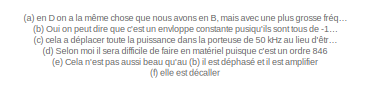
[diagram: root canvas - part 1/2, top left region]
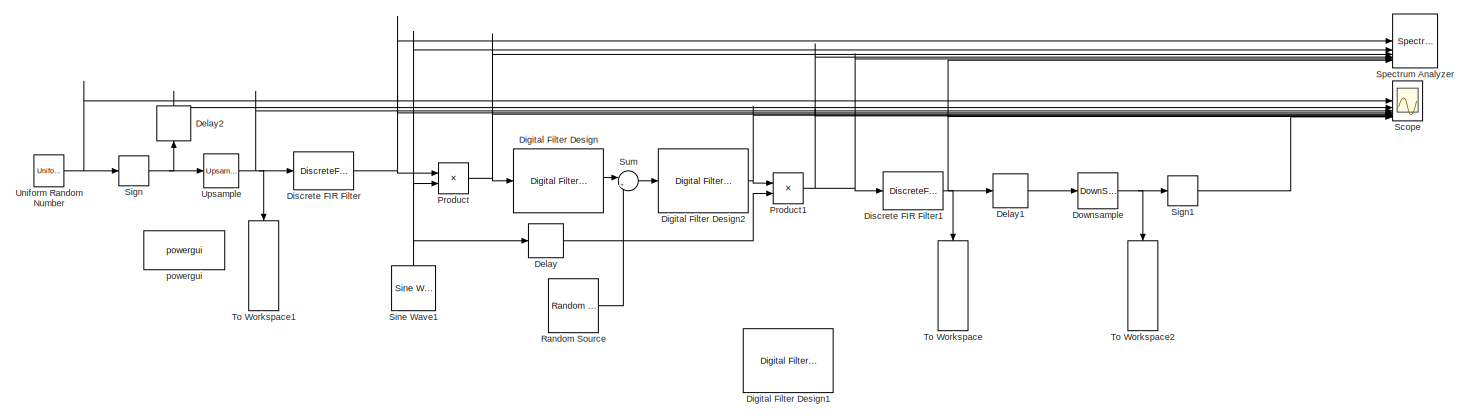
[diagram: root canvas - part 2/2, full width, bottom band]
MODEL slx_2156a71bcfef
KIND model
CONFIG AbsTol = auto
CONFIG EnableMultiTasking = off
CONFIG FixedStep = auto
CONFIG MaxStep = auto
CONFIG MinStep = auto
CONFIG RelTol = 1e-3
CONFIG SampleTimeConstraint = Unconstrained
CONFIG SolverName = VariableStepAuto
CONFIG StartTime = 0.0
CONFIG StopTime = 0.5
BLOCK [Delay] Delay
  DelayLength = 424
  InputPortMap = u0
BLOCK [Delay] Delay1
  DelayLength = 54
  InputPortMap = u0
BLOCK [Delay] Delay2
  DelayLength = 10
  InputPortMap = u0
  NameLocation = right
BLOCK [Reference] Digital Filter Design  REF=dspfdesign/Digital
Filter Design
  SourceBlock = dspfdesign/Digital\nFilter Design
  SourceType = Digital Filter Design
  UserDataPersistent = on
BLOCK [Reference] Digital Filter Design1  REF=dspfdesign/Digital
Filter Design
  Commented = on
  SourceBlock = dspfdesign/Digital\nFilter Design
  SourceType = Digital Filter Design
  UserDataPersistent = on
BLOCK [Reference] Digital Filter Design2  REF=dspfdesign/Digital
Filter Design
  SourceBlock = dspfdesign/Digital\nFilter Design
  SourceType = Digital Filter Design
  UserDataPersistent = on
BLOCK [DiscreteFir] Discrete FIR Filter
  CloseFcn = dspblkCoreblockFVToolHelper(gcbh,'close');
  Coefficients = ones(1,100)
  CopyFcn = dspblkCoreblockFVToolHelper(gcbh,'copy');
  DeleteFcn = dspblkCoreblockFVToolHelper(gcbh,'close');
  InputPortMap = u0
  LoadFcn = dspblkCoreblockFVToolHelper(gcbh,'load');
  ModelCloseFcn = dspblkCoreblockFVToolHelper(gcbh,'close');
  OutputPortMap = o0
  PostSaveFcn = dspblkCoreblockFVToolHelper(gcbh,'postsave');
  PreSaveFcn = dspblkCoreblockFVToolHelper(gcbh,'presave');
BLOCK [DiscreteFir] Discrete FIR Filter1
  CloseFcn = dspblkCoreblockFVToolHelper(gcbh,'close');
  Coefficients = ones(1,100)
  CopyFcn = dspblkCoreblockFVToolHelper(gcbh,'copy');
  DeleteFcn = dspblkCoreblockFVToolHelper(gcbh,'close');
  InputPortMap = u0
  LoadFcn = dspblkCoreblockFVToolHelper(gcbh,'load');
  ModelCloseFcn = dspblkCoreblockFVToolHelper(gcbh,'close');
  OutputPortMap = o0
  PostSaveFcn = dspblkCoreblockFVToolHelper(gcbh,'postsave');
  PreSaveFcn = dspblkCoreblockFVToolHelper(gcbh,'presave');
BLOCK [DownSample] Downsample
  InputProcessing = Elements as channels (sample based)
  N = 100
  RateOptions = Allow multirate processing
BLOCK [Product] Product
BLOCK [Product] Product1
BLOCK [Reference] Random Source  REF=dspsrcs4/Random
Source
  SourceBlock = dspsrcs4/Random\nSource
  SourceType = dsp.simulink.RandomSource
BLOCK [Scope] Scope
  ActiveDisplayYMaximum = 1.6010341967824271
  ActiveDisplayYMinimum = -1.1698560364941972
  Floating = off
  GraphicalSettings = {"Style":{"BackgroundColor":[0.12941176470588237,0.12941176470588237,0.12941176470588237],"AxesColor":[0.07058823529411765,0.07058823529411765,0.07058823529411765],"LabelsColor":[0.8509803921568627,0.8509803921568627,0.8509803921568627],"PreserveColors":false,"Visible":[false,false,false,false,false,false,false,true,false],"LineStyle":["-","-","-","-","-","-","-","-","-"],"LineWidth":[1.5,1.5,1.5,...<+2990ch>
  MultipleDisplayCache = [{"MaxYLimMag":96.900148832477555,"MaxYLimReal":1.6010341967824271,"MinYLimMag":0,"MinYLimReal":-1.1698560364941972,"PlotAsMagnitudePhase":false,"ShowGrid":true,"ShowLegend":true,"Title":"%<SignalLabel>","YLabel":""}]
  NumInputPorts = 9
  ScopeFrameLocation = window
  ShowLegend = on
  Visible = on
  WasSavedAsWebScope = on
  WindowPosition = [1.000000,1.000000,2056.000000,1257.000000,]
BLOCK [Signum] Sign
BLOCK [Signum] Sign1
BLOCK [Reference] Sine Wave1  REF=dspsrcs4/Sine Wave
  NameLocation = right
  SourceBlock = dspsrcs4/Sine Wave
  SourceType = Sine Wave
BLOCK [SpectrumAnalyzer] Spectrum Analyzer
  GraphicalSettings = {"GraphicalSettings":{"Style":{"BackgroundColor":[0.12941176470588237,0.12941176470588237,0.12941176470588237],"AxesColor":[0.070588235294117646,0.070588235294117646,0.070588235294117646],"LabelsColor":[0.85098039215686272,0.85098039215686272,0.85098039215686272],"PreserveColors":false,"Visible":[true,true,true,true,true,true],"LineStyle":["-","-","-","-","-","-"],"LineWidth":[1.5,1.5,1.5,1.5,1.5,...<+541ch>
  MaximizeAxes = Off
  NumInputPorts = 6
  ScopeFrameLocation = window
  ShowLegend = on
  Span = 1000000
  SpectrumType = Power density
  SpectrumUnits = dBm/Hz
  StartFrequency = -500000
  StopFrequency = 500000
  Visible = on
  WasSavedAsWebScope = on
  WindowInvariantSamplesPerUpdate = on
  WindowPosition = [1109.000000,602.000000,979.000000,638.000000,]
  YLimits = [-295.7819 49.2638]
BLOCK [Sum] Sum
  Inputs = |++
BLOCK [ToWorkspace] To Workspace
  FixptAsFi = on
  MaxDataPoints = inf
  NameLocation = left
  SampleTime = -1
  Save2DSignal = 2-D array (concatenate along first dimension)
  VariableName = y1
BLOCK [ToWorkspace] To Workspace1
  FixptAsFi = on
  MaxDataPoints = inf
  NameLocation = left
  SampleTime = -1
  Save2DSignal = 2-D array (concatenate along first dimension)
  VariableName = y2
BLOCK [ToWorkspace] To Workspace2
  FixptAsFi = on
  MaxDataPoints = inf
  NameLocation = left
  SampleTime = -1
  Save2DSignal = 2-D array (concatenate along first dimension)
  VariableName = out
BLOCK [UniformRandomNumber] Uniform Random Number
  SampleTime = 1/10000
BLOCK [Reference] Upsample  REF=dspsigops/Upsample
  LibrarySourceBlock = dsphdlsupportsigops/Upsample
  SourceBlock = dspsigops/Upsample
  SourceType = Upsample
  UserDataPersistent = on
BLOCK [Reference] powergui  REF=spspowerguiLib/powergui
  LibrarySourceBlock = sps_lib/powergui
  Priority = 1
  SourceBlock = spspowerguiLib/powergui
  SourceType = PSB option menu block
ANNOTATION (root): (a) en D on a la même chose que nous avons en B, mais avec une plus grosse fréquence (b) Oui on peut dire que c'est un envloppe constante pusiqu'ils sont tous de -1 à 1 (c) cela a déplacer toute la puissance dans la porteuse de 50 kHz au lieu d'être au centre avec pas de fréquence (d) Selon moi il sera difficile de faire en matériel puisque c'est un ordre 846 (e) Cela n'est pas aussi beau qu'au (b...<+62ch>
LINE Delay1:1 -> Downsample:1
LINE Delay2:1 -> Scope:2
LINE Delay:1 -> Product1:2
NET Digital Filter Design2:1 -> Product1:1, Scope:6
LINE Digital Filter Design:1 -> Sum:1
NET Discrete FIR Filter1:1 -> Delay1:1, Scope:8, Spectrum Analyzer:6, To Workspace:1
NET Discrete FIR Filter:1 -> Product:1, Scope:4, Spectrum Analyzer:1
NET Downsample:1 -> Sign1:1, To Workspace2:1
NET Product1:1 -> Discrete FIR Filter1:1, Scope:7, Spectrum Analyzer:4, Spectrum Analyzer:5
NET Product:1 -> Digital Filter Design:1, Scope:5, Spectrum Analyzer:3
LINE Random Source:1 -> Sum:2
LINE Sign1:1 -> Scope:9
NET Sign:1 -> Delay2:1, Upsample:1
NET Sine Wave1:1 -> Delay:1, Product:2, Spectrum Analyzer:2
LINE Sum:1 -> Digital Filter Design2:1
NET Uniform Random Number:1 -> Scope:1, Sign:1
NET Upsample:1 -> Discrete FIR Filter:1, Scope:3, To Workspace1:1
note: NET lines group one-source signal fan-out (src -> all destinations, sorted); 1:1 wires keep LINE
